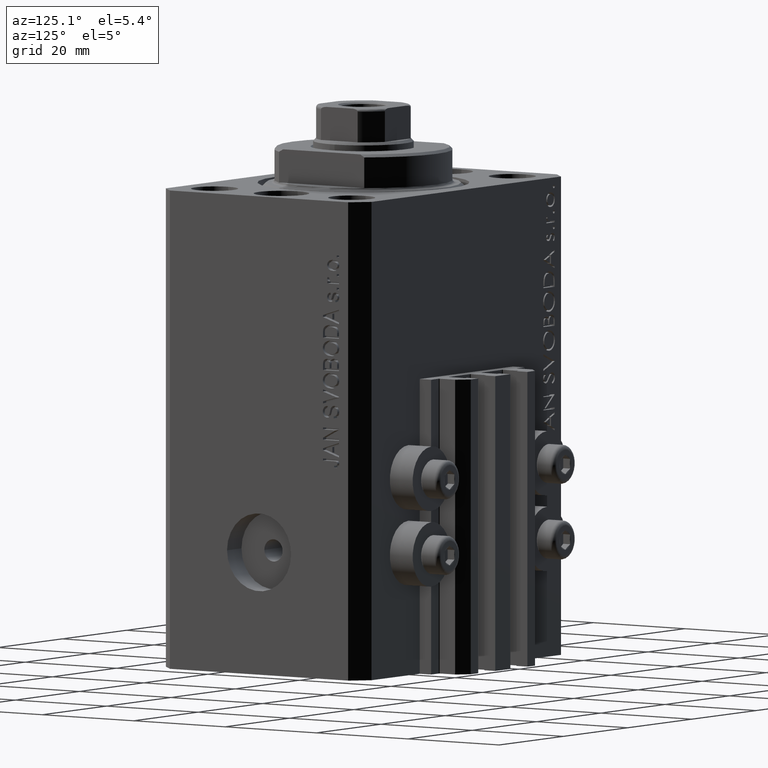
[diagram: clean part render]
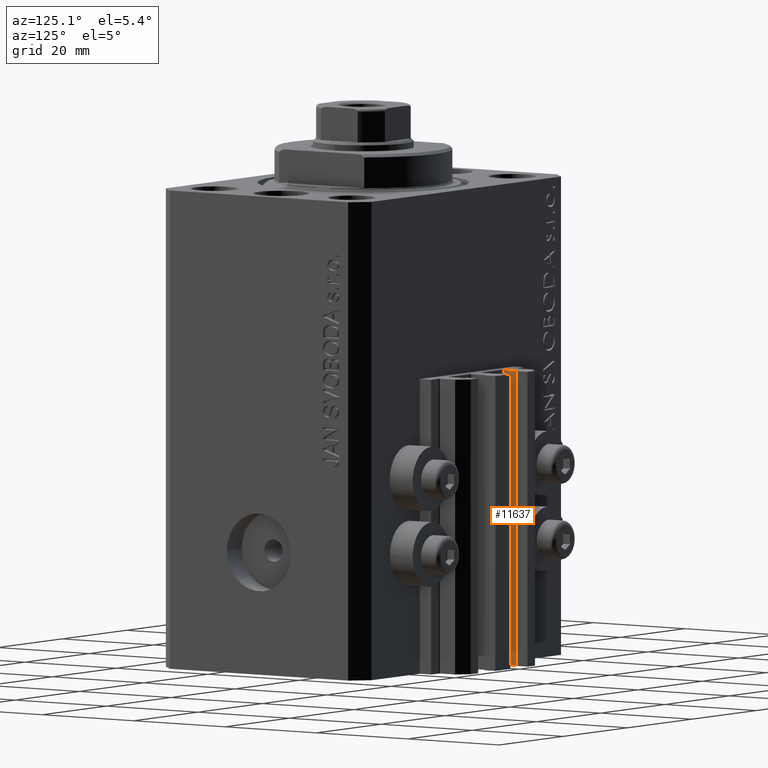
[diagram: same view with one face highlighted and labeled with its STEP entity id]
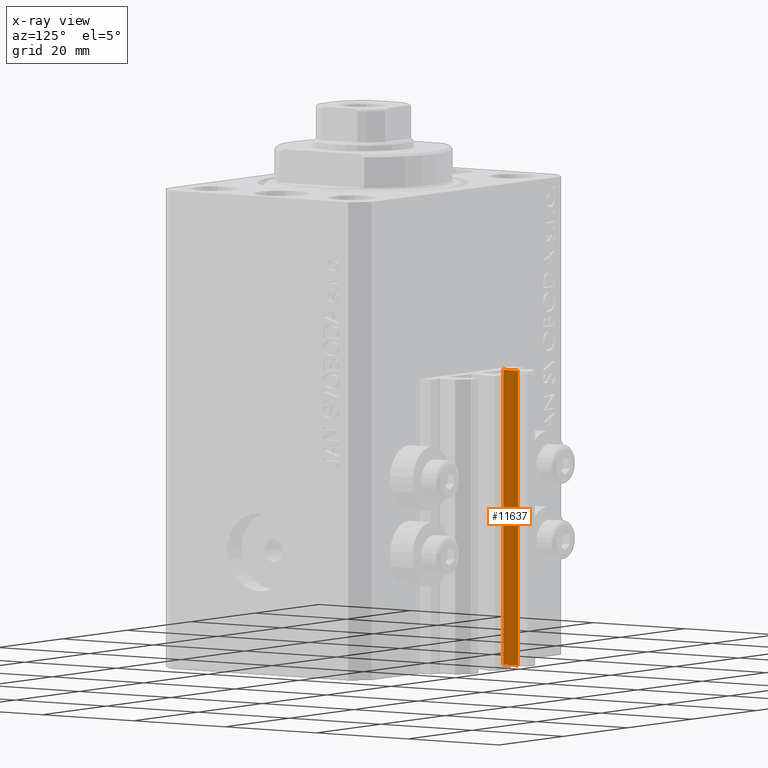
[diagram: x-ray of the same camera — body ghosted, the highlighted face saturated]
A machine part, auxiliary view. The second image highlights one B-rep face of the part: STEP entity #11637.
The next image is the same camera in x-ray: the body ghosted, the highlighted face saturated — about 0% of this face is hidden behind the body in this view.
In plain terms, the highlighted planar face has unit normal (1, -0, 0).
Its self-contained STEP definition (entity closure, byte-faithful):
#167 = DIRECTION ( 'NONE',  ( 1.084202172485506406E-15, 1.000000000000000000, 0.000000000000000000 ) ) ;
#990 = CARTESIAN_POINT ( 'NONE',  ( -8.399999999999998579, 24.69999999999949480, -86.00000000000000000 ) ) ;
#3890 = EDGE_CURVE ( 'NONE', #27468, #4801, #12417, .T. ) ;
#4608 = VECTOR ( 'NONE', #167, 1000.000000000000000 ) ;
#4801 = VERTEX_POINT ( 'NONE', #19192 ) ;
#4881 = DIRECTION ( 'NONE',  ( 1.084202172485506406E-15, 1.000000000000000000, 0.000000000000000000 ) ) ;
#5684 = CARTESIAN_POINT ( 'NONE',  ( -8.399999999999996803, 27.89999999999948699, -86.00000000000000000 ) ) ;
#8918 = PLANE ( 'NONE',  #47196 ) ;
#11637 = ADVANCED_FACE ( 'NONE', ( #23239 ), #8918, .T. ) ;
#12417 = LINE ( 'NONE', #990, #12654 ) ;
#12654 = VECTOR ( 'NONE', #16253, 1000.000000000000000 ) ;
#13345 = EDGE_CURVE ( 'NONE', #27468, #17140, #32070, .T. ) ;
#14150 = DIRECTION ( 'NONE',  ( 1.084202172485506406E-15, 1.000000000000000000, 0.000000000000000000 ) ) ;
#14405 = ORIENTED_EDGE ( 'NONE', *, *, #42095, .T. ) ;
#14632 = CARTESIAN_POINT ( 'NONE',  ( -8.400000000000000355, 24.69999999999949480, -86.00000000000000000 ) ) ;
#15045 = CARTESIAN_POINT ( 'NONE',  ( -8.399999999999996803, 27.89999999999948699, -86.00000000000000000 ) ) ;
#15250 = VECTOR ( 'NONE', #14150, 1000.000000000000000 ) ;
#16253 = DIRECTION ( 'NONE',  ( 0.000000000000000000, 0.000000000000000000, 1.000000000000000000 ) ) ;
#17119 = LINE ( 'NONE', #19771, #4608 ) ;
#17140 = VERTEX_POINT ( 'NONE', #5684 ) ;
#17993 = ORIENTED_EDGE ( 'NONE', *, *, #3890, .F. ) ;
#18689 = CARTESIAN_POINT ( 'NONE',  ( -8.399999999999998579, 24.69999999999949480, -86.00000000000000000 ) ) ;
#19192 = CARTESIAN_POINT ( 'NONE',  ( -8.399999999999998579, 24.69999999999949480, -33.00000000000000000 ) ) ;
#19771 = CARTESIAN_POINT ( 'NONE',  ( -8.400000000000000355, 24.69999999999949480, -33.00000000000000000 ) ) ;
#20331 = ORIENTED_EDGE ( 'NONE', *, *, #46268, .F. ) ;
#21261 = LINE ( 'NONE', #15045, #25787 ) ;
#22537 = DIRECTION ( 'NONE',  ( 1.000000000000000000, -1.084202172485506406E-15, 0.000000000000000000 ) ) ;
#23239 = FACE_OUTER_BOUND ( 'NONE', #24942, .T. ) ;
#24478 = VERTEX_POINT ( 'NONE', #25273 ) ;
#24942 = EDGE_LOOP ( 'NONE', ( #20331, #17993, #42797, #14405 ) ) ;
#25273 = CARTESIAN_POINT ( 'NONE',  ( -8.399999999999996803, 27.89999999999948699, -33.00000000000000000 ) ) ;
#25787 = VECTOR ( 'NONE', #33182, 1000.000000000000000 ) ;
#27468 = VERTEX_POINT ( 'NONE', #18689 ) ;
#32070 = LINE ( 'NONE', #14632, #15250 ) ;
#33182 = DIRECTION ( 'NONE',  ( 0.000000000000000000, 0.000000000000000000, 1.000000000000000000 ) ) ;
#34233 = CARTESIAN_POINT ( 'NONE',  ( -8.400000000000000355, 24.69999999999949480, -86.00000000000000000 ) ) ;
#42095 = EDGE_CURVE ( 'NONE', #17140, #24478, #21261, .T. ) ;
#42797 = ORIENTED_EDGE ( 'NONE', *, *, #13345, .T. ) ;
#46268 = EDGE_CURVE ( 'NONE', #4801, #24478, #17119, .T. ) ;
#47196 = AXIS2_PLACEMENT_3D ( 'NONE', #34233, #22537, #4881 ) ;